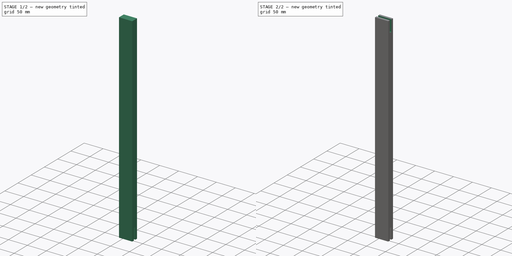
[diagram: build sequence overview — one tinted view per stage of 2, left to right]
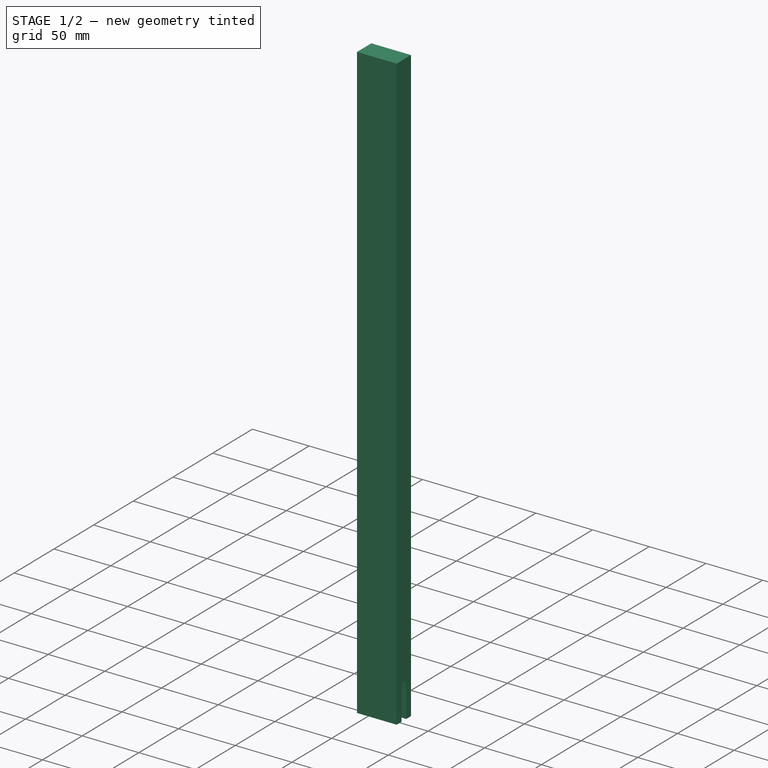
[diagram: stage 1 of 2 — iso view after this stage's code; geometry added in this stage tinted green]
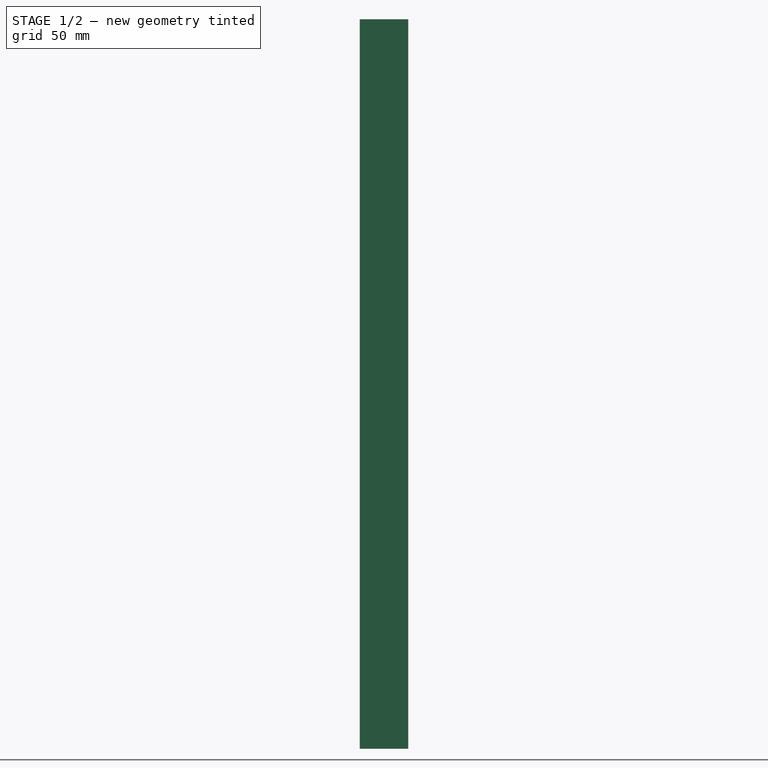
[diagram: stage 1 of 2 — front view after this stage's code; geometry added in this stage tinted green]
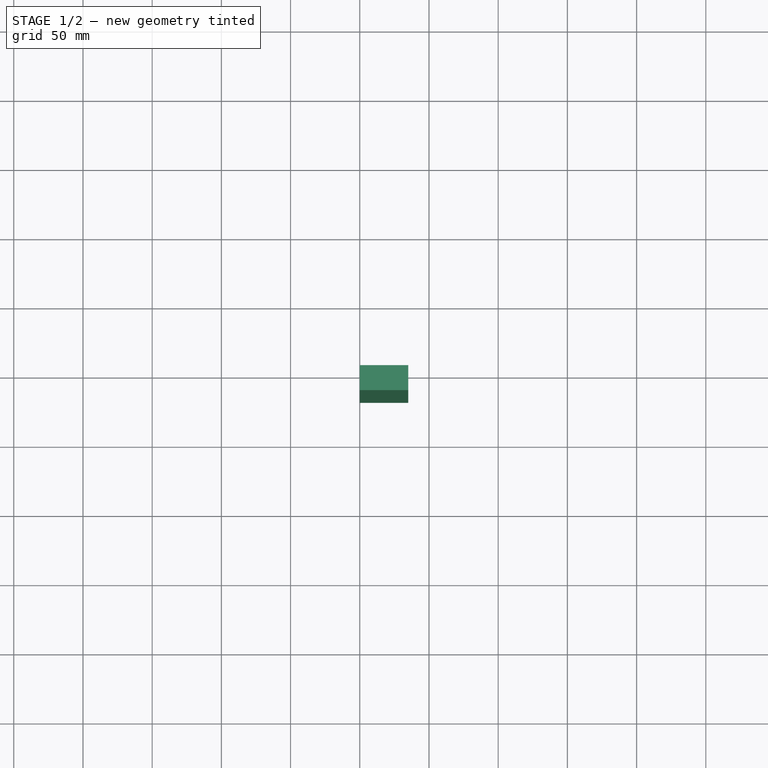
[diagram: stage 1 of 2 — top view after this stage's code; geometry added in this stage tinted green]
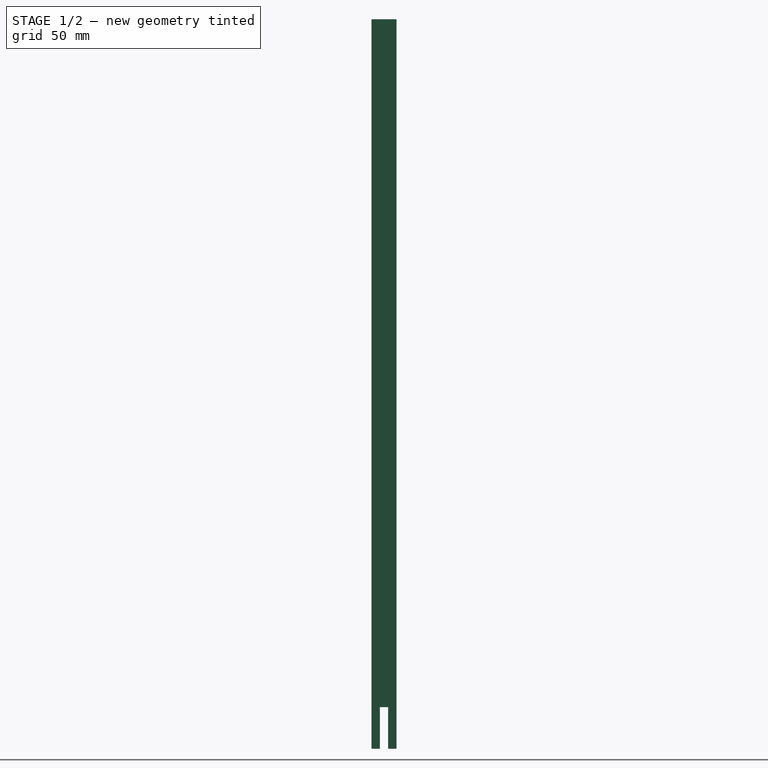
[diagram: stage 1 of 2 — right view after this stage's code; geometry added in this stage tinted green]
FCSTD DOCUMENT  (FreeCAD 0.14R$WCREV$)
Label: Door Rail
License: CC-BY 3.0
LicenseURL: http://creativecommons.org/licenses/by/3.0/
objects: Sketcher::SketchObject×4, PartDesign::Pocket×3, PartDesign::Pad×1, Part::Feature×1
note: 13 computed .brp shape members not serialized (recipe doc carries the construction recipe); baked Part::Feature solids carry a one-line shape summary decoded from their .brp

FEATURE [Sketcher::SketchObject] Sketch
  Placement = pos=(0,0,0) rot=(-1,0,0;4.71239rad)
  sketch-geometry (4):
    g0: LineSegment StartX=0 StartY=0 StartZ=0 EndX=35 EndY=0 EndZ=0
    g1: LineSegment StartX=35 StartY=0 StartZ=0 EndX=35 EndY=527 EndZ=0
    g2: LineSegment StartX=35 StartY=527 StartZ=0 EndX=0 EndY=527 EndZ=0
    g3: LineSegment StartX=0 StartY=527 StartZ=0 EndX=0 EndY=0 EndZ=0
  constraints (11):
    c: Coincident(g0,g1)
    c: Coincident(g1,g2)
    c: Coincident(g2,g3)
    c: Coincident(g3,g0)
    c: Horizontal(g0)
    c: Horizontal(g2)
    c: Vertical(g1)
    c: Vertical(g3)
    c: Coincident(g0,g-1)
    c: DistanceY(g3) = -527
    c: DistanceX(g0) = 35
FEATURE [PartDesign::Pad] Pad
  Length = 18
  Length2 = 100
  Placement = pos=(0,0,0) rot=(-1,0,0;4.71239rad)
  Sketch = -> Sketch
  Type = 0
FEATURE [Sketcher::SketchObject] Sketch001
  Placement = pos=(35,0,0) rot=(0.707107,0,0.707107;3.14159rad)
  Support = -> Pad [Face2]
  sketch-geometry (5):
    g0: LineSegment StartX=0 StartY=12 StartZ=0 EndX=30 EndY=12 EndZ=0
    g1: LineSegment StartX=30 StartY=12 StartZ=0 EndX=30 EndY=6 EndZ=0
    g2: LineSegment StartX=30 StartY=6 StartZ=0 EndX=0 EndY=6 EndZ=0
    g3: LineSegment StartX=0 StartY=6 StartZ=0 EndX=0 EndY=12 EndZ=0
    g4: LineSegment [constr] StartX=0 StartY=6 StartZ=0 EndX=0 EndY=0 EndZ=0
  constraints (14):
    c: Coincident(g0,g1)
    c: Coincident(g1,g2)
    c: Coincident(g2,g3)
    c: Coincident(g3,g0)
    c: Horizontal(g0)
    c: Horizontal(g2)
    c: Vertical(g1)
    c: Vertical(g3)
    c: PointOnObject(g0,g-2)
    c: Coincident(g4,g2)
    c: Coincident(g4,g-1)
    c: DistanceY(g4) = -6
    c: DistanceY(g3) = 6
    c: DistanceX(g2) = -30
FEATURE [PartDesign::Pocket] Pocket
  Length = 5
  Placement = pos=(0,0,0) rot=(-1,0,0;4.71239rad)
  Sketch = -> Sketch001
  Type = 1
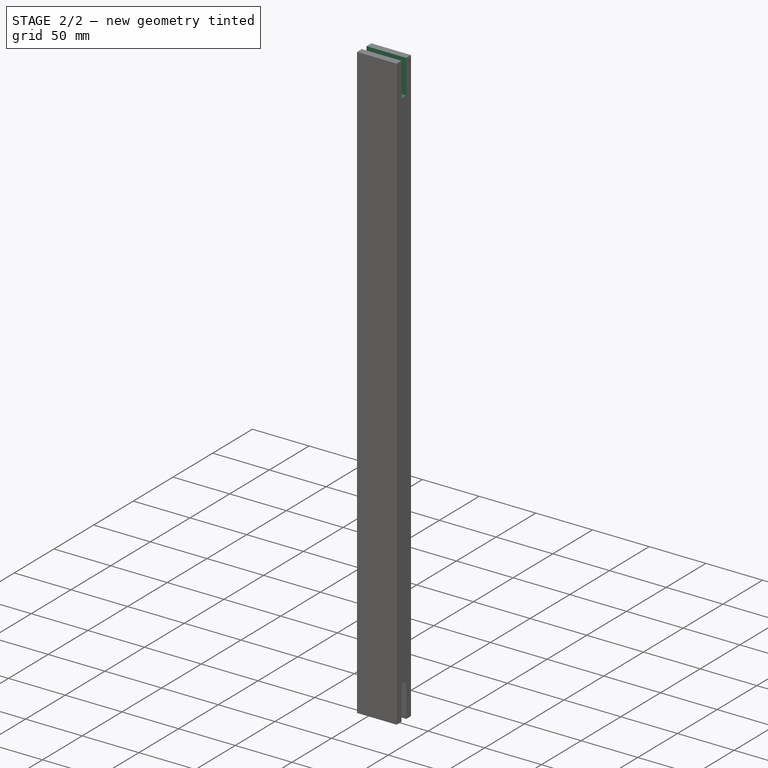
[diagram: stage 2 of 2 — iso view after this stage's code; geometry added in this stage tinted green]
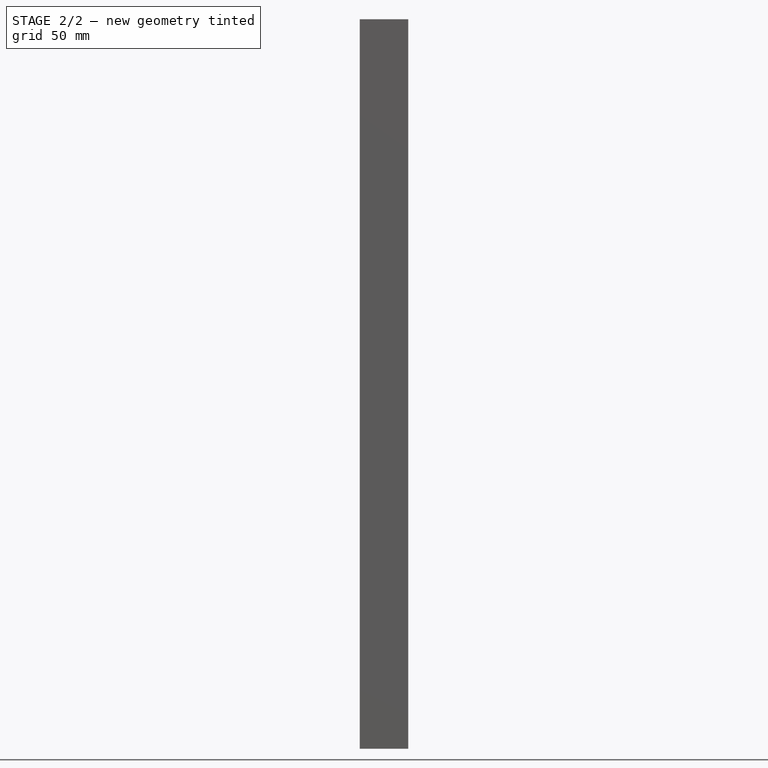
[diagram: stage 2 of 2 — front view after this stage's code; geometry added in this stage tinted green]
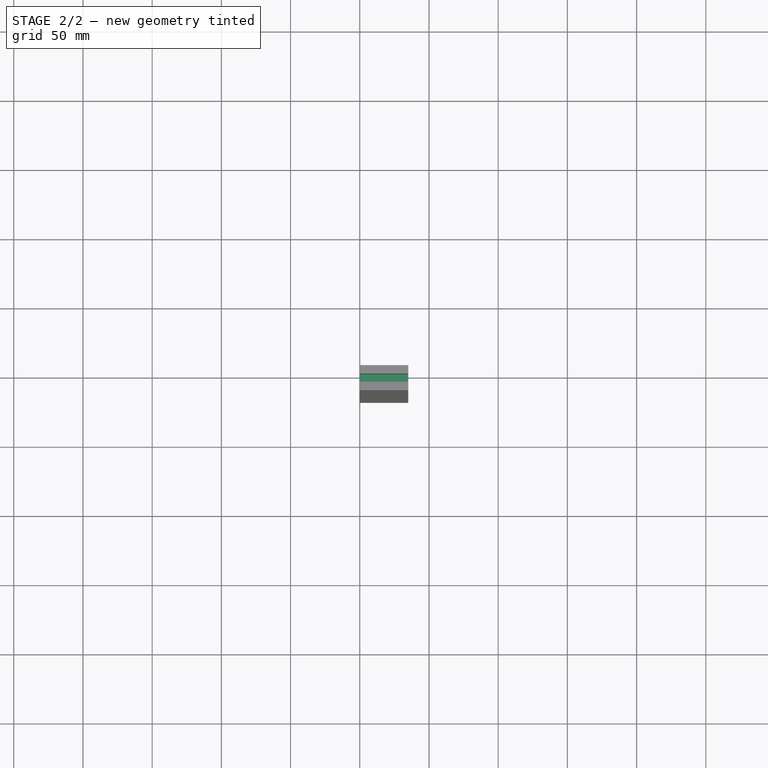
[diagram: stage 2 of 2 — top view after this stage's code; geometry added in this stage tinted green]
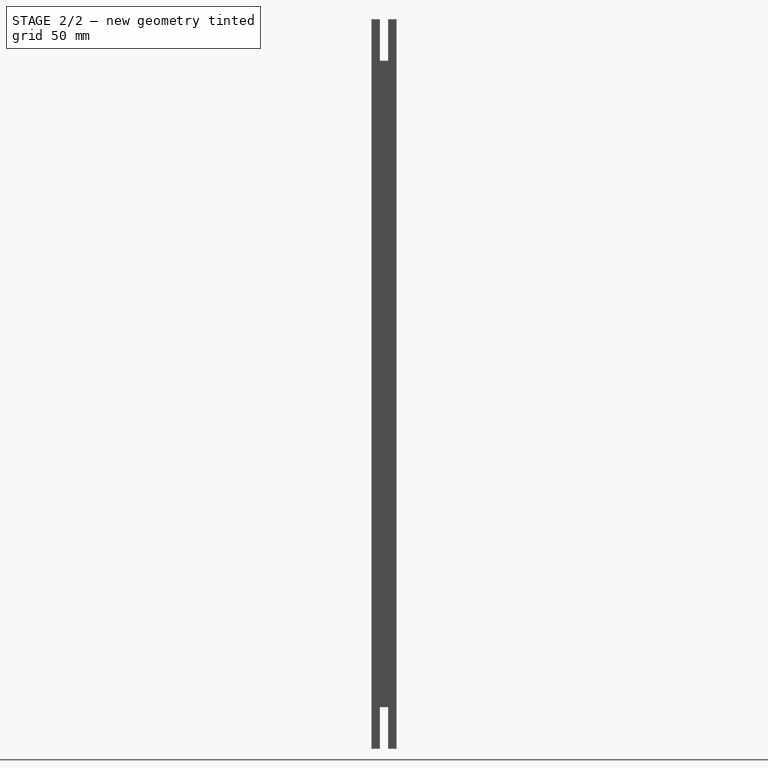
[diagram: stage 2 of 2 — right view after this stage's code; geometry added in this stage tinted green]
FEATURE [Sketcher::SketchObject] Sketch002
  Placement = pos=(35,0,0) rot=(0.707107,0,0.707107;3.14159rad)
  Support = -> Pocket [Face3]
  sketch-geometry (5):
    g0: LineSegment [constr] StartX=527.015 StartY=0 StartZ=0 EndX=527.015 EndY=6 EndZ=0
    g1: LineSegment StartX=527.015 StartY=6 StartZ=0 EndX=497.015 EndY=6 EndZ=0
    g2: LineSegment StartX=497.015 StartY=6 StartZ=0 EndX=497.015 EndY=12 EndZ=0
    g3: LineSegment StartX=497.015 StartY=12 StartZ=0 EndX=527.015 EndY=12 EndZ=0
    g4: LineSegment StartX=527.015 StartY=12 StartZ=0 EndX=527.015 EndY=6 EndZ=0
  constraints (13):
    c: Vertical(g0)
    c: Coincident(g1,g2)
    c: Coincident(g2,g3)
    c: Coincident(g3,g4)
    c: Coincident(g4,g1)
    c: Horizontal(g1)
    c: Horizontal(g3)
    c: Vertical(g2)
    c: Vertical(g4)
    c: Coincident(g1,g0)
    c: DistanceY(g4) = -6
    c: DistanceY(g0) = 6
    c: DistanceX(g3) = 30
FEATURE [PartDesign::Pocket] Pocket001
  Length = 5
  Placement = pos=(0,0,0) rot=(-1,0,0;4.71239rad)
  Sketch = -> Sketch002
  Type = 1
FEATURE [Sketcher::SketchObject] Sketch003
  Placement = pos=(0,0,0) rot=(-1,0,0;1.5708rad)
  Support = -> Pocket001 [Face2]
  sketch-geometry (6):
    g0: LineSegment [constr] StartX=0 StartY=-527.104 StartZ=0 EndX=0 EndY=-497.104 EndZ=0
    g1: LineSegment [constr] StartX=0 StartY=0 StartZ=0 EndX=0 EndY=-26 EndZ=0
    g2: LineSegment StartX=0 StartY=-26 StartZ=0 EndX=4 EndY=-26 EndZ=0
    g3: LineSegment StartX=4 StartY=-26 StartZ=0 EndX=4 EndY=-501 EndZ=0
    g4: LineSegment StartX=4 StartY=-501 StartZ=0 EndX=0 EndY=-501 EndZ=0
    g5: LineSegment StartX=0 StartY=-501 StartZ=0 EndX=0 EndY=-26 EndZ=0
  constraints (17):
    c: PointOnObject(g0,g-2)
    c: Vertical(g0)
    c: DistanceY(g0) = 30
    c: Coincident(g1,g-1)
    c: PointOnObject(g1,g-2)
    c: Coincident(g2,g3)
    c: Coincident(g3,g4)
    c: Coincident(g4,g5)
    c: Coincident(g5,g2)
    c: Horizontal(g2)
    c: Horizontal(g4)
    c: Vertical(g3)
    c: Vertical(g5)
    c: Coincident(g2,g1)
    c: DistanceX(g2) = 4
    c: DistanceY(g3) = -475
    c: DistanceY(g1) = -26
FEATURE [PartDesign::Pocket] Pocket002
  Length = 4
  Placement = pos=(0,0,0) rot=(-1,0,0;4.71239rad)
  Sketch = -> Sketch003
  Type = 0
FEATURE [Part::Feature] Pocket002001  label="Pocket003"
  Placement = pos=(0,0,0) rot=(1,0,0;1.5708rad)
  shape: bbox 35 x 18 x 527 mm, 18 faces (baked)
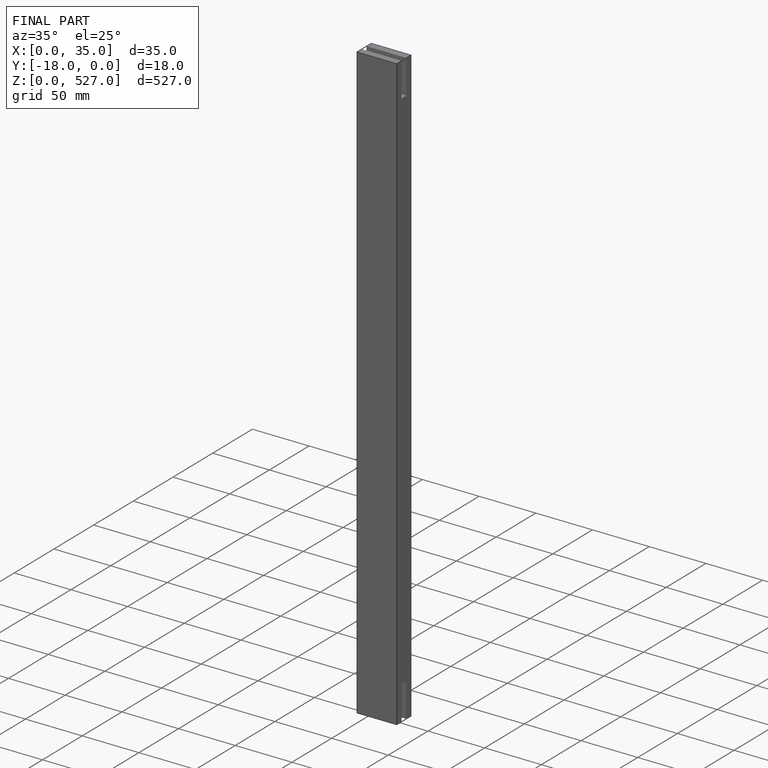
[diagram: finished part — iso view with bounding-box wireframe]
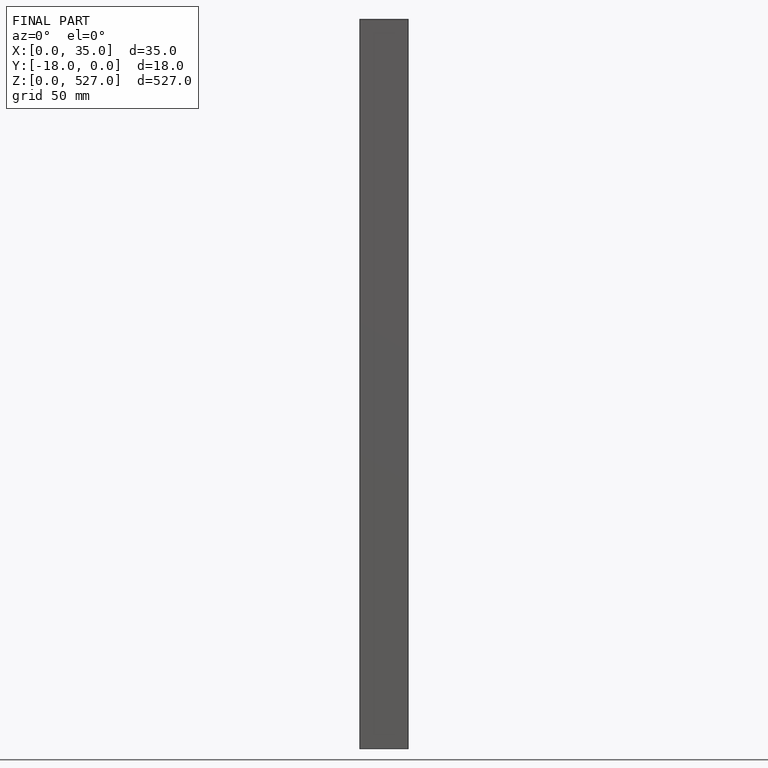
[diagram: finished part — front view with bounding-box wireframe]
